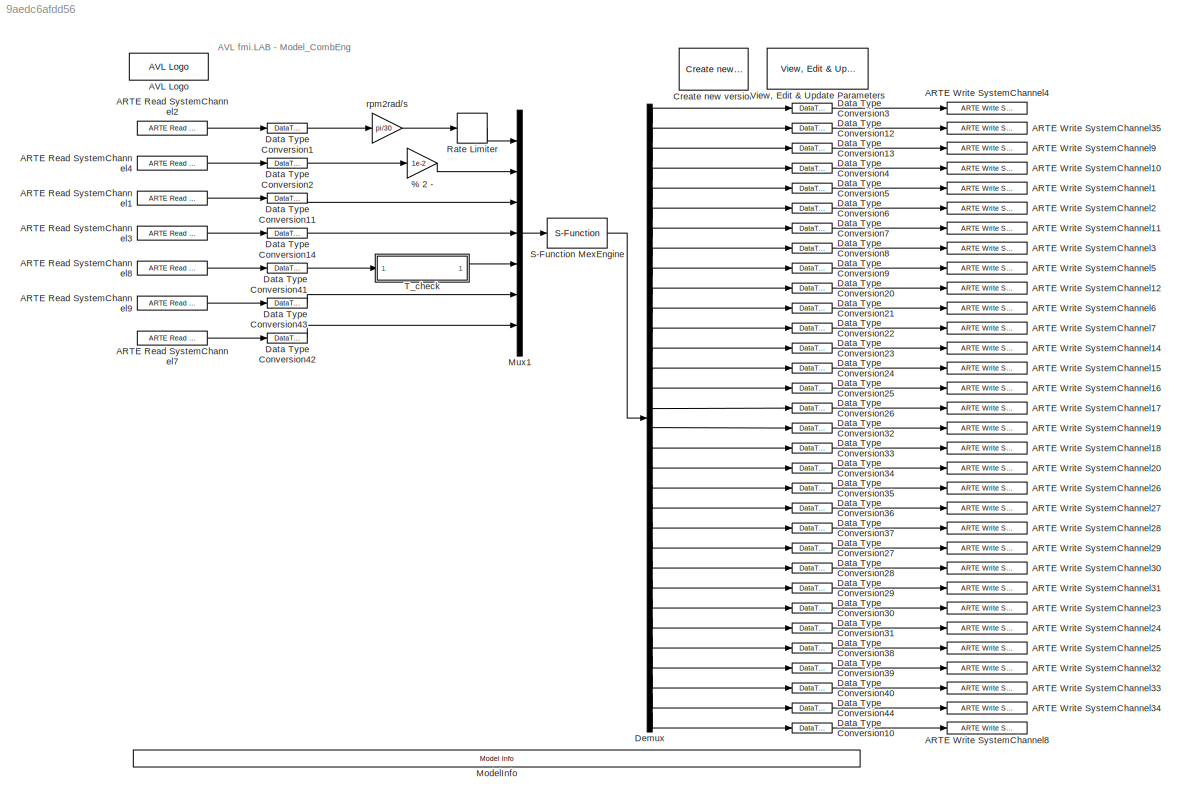
MODEL slx_9aedc6afdd56
KIND model
CONFIG AbsTol = auto
CONFIG FixedStep = Ts
CONFIG MaxStep = auto
CONFIG MinStep = auto
CONFIG RelTol = 1e-3
CONFIG SampleTimeConstraint = Unconstrained
CONFIG Solver = FixedStepDiscrete
CONFIG SolverMode = SingleTasking
CONFIG SolverName = FixedStepDiscrete
CONFIG StartTime = 0.0
CONFIG StopTime = inf
BLOCK [Gain] % 2 -
  Gain = 1e-2
  OutDataTypeStr = double
  ParamDataTypeStr = double
  SaturateOnIntegerOverflow = off
BLOCK [Reference] ARTE Read SystemChannel1  REF=ArteChannelInterface_Lib_V1_2/ARTE Read SystemChannel
  Ports = [0, 1]
  SourceBlock = ArteChannelInterface_Lib_V1_2/ARTE Read SystemChannel
  SourceType = ARTE Channel Interface - Read SystemChannel v1.2
BLOCK [Reference] ARTE Read SystemChannel2  REF=ArteChannelInterface_Lib_V1_2/ARTE Read SystemChannel
  Ports = [0, 1]
  SourceBlock = ArteChannelInterface_Lib_V1_2/ARTE Read SystemChannel
  SourceType = ARTE Channel Interface - Read SystemChannel v1.2
BLOCK [Reference] ARTE Read SystemChannel3  REF=ArteChannelInterface_Lib_V1_2/ARTE Read SystemChannel
  Ports = [0, 1]
  SourceBlock = ArteChannelInterface_Lib_V1_2/ARTE Read SystemChannel
  SourceType = ARTE Channel Interface - Read SystemChannel v1.2
BLOCK [Reference] ARTE Read SystemChannel4  REF=ArteChannelInterface_Lib_V1_2/ARTE Read SystemChannel
  Ports = [0, 1]
  SourceBlock = ArteChannelInterface_Lib_V1_2/ARTE Read SystemChannel
  SourceType = ARTE Channel Interface - Read SystemChannel v1.2
BLOCK [Reference] ARTE Read SystemChannel7  REF=ArteChannelInterface_Lib_V1_2/ARTE Read SystemChannel
  Ports = [0, 1]
  SourceBlock = ArteChannelInterface_Lib_V1_2/ARTE Read SystemChannel
  SourceType = ARTE Channel Interface - Read SystemChannel v1.2
BLOCK [Reference] ARTE Read SystemChannel8  REF=ArteChannelInterface_Lib_V1_2/ARTE Read SystemChannel
  Ports = [0, 1]
  SourceBlock = ArteChannelInterface_Lib_V1_2/ARTE Read SystemChannel
  SourceType = ARTE Channel Interface - Read SystemChannel v1.2
BLOCK [Reference] ARTE Read SystemChannel9  REF=ArteChannelInterface_Lib_V1_2/ARTE Read SystemChannel
  Ports = [0, 1]
  SourceBlock = ArteChannelInterface_Lib_V1_2/ARTE Read SystemChannel
  SourceType = ARTE Channel Interface - Read SystemChannel v1.2
BLOCK [Reference] ARTE Write SystemChannel1  REF=ArteChannelInterface_Lib_V1_2/ARTE Write SystemChannel
  Ports = [1]
  SourceBlock = ArteChannelInterface_Lib_V1_2/ARTE Write SystemChannel
  SourceType = ARTE Channel Interface - Write SystemChannel v1.2
BLOCK [Reference] ARTE Write SystemChannel10  REF=ArteChannelInterface_Lib_V1_2/ARTE Write SystemChannel
  Ports = [1]
  SourceBlock = ArteChannelInterface_Lib_V1_2/ARTE Write SystemChannel
  SourceType = ARTE Channel Interface - Write SystemChannel v1.2
BLOCK [Reference] ARTE Write SystemChannel11  REF=ArteChannelInterface_Lib_V1_2/ARTE Write SystemChannel
  Ports = [1]
  SourceBlock = ArteChannelInterface_Lib_V1_2/ARTE Write SystemChannel
  SourceType = ARTE Channel Interface - Write SystemChannel v1.2
BLOCK [Reference] ARTE Write SystemChannel12  REF=ArteChannelInterface_Lib_V1_2/ARTE Write SystemChannel
  Ports = [1]
  SourceBlock = ArteChannelInterface_Lib_V1_2/ARTE Write SystemChannel
  SourceType = ARTE Channel Interface - Write SystemChannel v1.2
BLOCK [Reference] ARTE Write SystemChannel14  REF=ArteChannelInterface_Lib_V1_2/ARTE Write SystemChannel
  Ports = [1]
  SourceBlock = ArteChannelInterface_Lib_V1_2/ARTE Write SystemChannel
  SourceType = ARTE Channel Interface - Write SystemChannel v1.2
BLOCK [Reference] ARTE Write SystemChannel15  REF=ArteChannelInterface_Lib_V1_2/ARTE Write SystemChannel
  Ports = [1]
  SourceBlock = ArteChannelInterface_Lib_V1_2/ARTE Write SystemChannel
  SourceType = ARTE Channel Interface - Write SystemChannel v1.2
BLOCK [Reference] ARTE Write SystemChannel16  REF=ArteChannelInterface_Lib_V1_2/ARTE Write SystemChannel
  Ports = [1]
  SourceBlock = ArteChannelInterface_Lib_V1_2/ARTE Write SystemChannel
  SourceType = ARTE Channel Interface - Write SystemChannel v1.2
BLOCK [Reference] ARTE Write SystemChannel17  REF=ArteChannelInterface_Lib_V1_2/ARTE Write SystemChannel
  Ports = [1]
  SourceBlock = ArteChannelInterface_Lib_V1_2/ARTE Write SystemChannel
  SourceType = ARTE Channel Interface - Write SystemChannel v1.2
BLOCK [Reference] ARTE Write SystemChannel18  REF=ArteChannelInterface_Lib_V1_2/ARTE Write SystemChannel
  Ports = [1]
  SourceBlock = ArteChannelInterface_Lib_V1_2/ARTE Write SystemChannel
  SourceType = ARTE Channel Interface - Write SystemChannel v1.2
BLOCK [Reference] ARTE Write SystemChannel19  REF=ArteChannelInterface_Lib_V1_2/ARTE Write SystemChannel
  Ports = [1]
  SourceBlock = ArteChannelInterface_Lib_V1_2/ARTE Write SystemChannel
  SourceType = ARTE Channel Interface - Write SystemChannel v1.2
BLOCK [Reference] ARTE Write SystemChannel2  REF=ArteChannelInterface_Lib_V1_2/ARTE Write SystemChannel
  Ports = [1]
  SourceBlock = ArteChannelInterface_Lib_V1_2/ARTE Write SystemChannel
  SourceType = ARTE Channel Interface - Write SystemChannel v1.2
BLOCK [Reference] ARTE Write SystemChannel20  REF=ArteChannelInterface_Lib_V1_2/ARTE Write SystemChannel
  Ports = [1]
  SourceBlock = ArteChannelInterface_Lib_V1_2/ARTE Write SystemChannel
  SourceType = ARTE Channel Interface - Write SystemChannel v1.2
BLOCK [Reference] ARTE Write SystemChannel23  REF=ArteChannelInterface_Lib_V1_2/ARTE Write SystemChannel
  Ports = [1]
  SourceBlock = ArteChannelInterface_Lib_V1_2/ARTE Write SystemChannel
  SourceType = ARTE Channel Interface - Write SystemChannel v1.2
BLOCK [Reference] ARTE Write SystemChannel24  REF=ArteChannelInterface_Lib_V1_2/ARTE Write SystemChannel
  Ports = [1]
  SourceBlock = ArteChannelInterface_Lib_V1_2/ARTE Write SystemChannel
  SourceType = ARTE Channel Interface - Write SystemChannel v1.2
BLOCK [Reference] ARTE Write SystemChannel25  REF=ArteChannelInterface_Lib_V1_2/ARTE Write SystemChannel
  Ports = [1]
  SourceBlock = ArteChannelInterface_Lib_V1_2/ARTE Write SystemChannel
  SourceType = ARTE Channel Interface - Write SystemChannel v1.2
BLOCK [Reference] ARTE Write SystemChannel26  REF=ArteChannelInterface_Lib_V1_2/ARTE Write SystemChannel
  Ports = [1]
  SourceBlock = ArteChannelInterface_Lib_V1_2/ARTE Write SystemChannel
  SourceType = ARTE Channel Interface - Write SystemChannel v1.2
BLOCK [Reference] ARTE Write SystemChannel27  REF=ArteChannelInterface_Lib_V1_2/ARTE Write SystemChannel
  Ports = [1]
  SourceBlock = ArteChannelInterface_Lib_V1_2/ARTE Write SystemChannel
  SourceType = ARTE Channel Interface - Write SystemChannel v1.2
BLOCK [Reference] ARTE Write SystemChannel28  REF=ArteChannelInterface_Lib_V1_2/ARTE Write SystemChannel
  Ports = [1]
  SourceBlock = ArteChannelInterface_Lib_V1_2/ARTE Write SystemChannel
  SourceType = ARTE Channel Interface - Write SystemChannel v1.2
BLOCK [Reference] ARTE Write SystemChannel29  REF=ArteChannelInterface_Lib_V1_2/ARTE Write SystemChannel
  Ports = [1]
  SourceBlock = ArteChannelInterface_Lib_V1_2/ARTE Write SystemChannel
  SourceType = ARTE Channel Interface - Write SystemChannel v1.2
BLOCK [Reference] ARTE Write SystemChannel3  REF=ArteChannelInterface_Lib_V1_2/ARTE Write SystemChannel
  Ports = [1]
  SourceBlock = ArteChannelInterface_Lib_V1_2/ARTE Write SystemChannel
  SourceType = ARTE Channel Interface - Write SystemChannel v1.2
BLOCK [Reference] ARTE Write SystemChannel30  REF=ArteChannelInterface_Lib_V1_2/ARTE Write SystemChannel
  Ports = [1]
  SourceBlock = ArteChannelInterface_Lib_V1_2/ARTE Write SystemChannel
  SourceType = ARTE Channel Interface - Write SystemChannel v1.2
BLOCK [Reference] ARTE Write SystemChannel31  REF=ArteChannelInterface_Lib_V1_2/ARTE Write SystemChannel
  Ports = [1]
  SourceBlock = ArteChannelInterface_Lib_V1_2/ARTE Write SystemChannel
  SourceType = ARTE Channel Interface - Write SystemChannel v1.2
BLOCK [Reference] ARTE Write SystemChannel32  REF=ArteChannelInterface_Lib_V1_2/ARTE Write SystemChannel
  Ports = [1]
  SourceBlock = ArteChannelInterface_Lib_V1_2/ARTE Write SystemChannel
  SourceType = ARTE Channel Interface - Write SystemChannel v1.2
BLOCK [Reference] ARTE Write SystemChannel33  REF=ArteChannelInterface_Lib_V1_2/ARTE Write SystemChannel
  Ports = [1]
  SourceBlock = ArteChannelInterface_Lib_V1_2/ARTE Write SystemChannel
  SourceType = ARTE Channel Interface - Write SystemChannel v1.2
BLOCK [Reference] ARTE Write SystemChannel34  REF=ArteChannelInterface_Lib_V1_2/ARTE Write SystemChannel
  Ports = [1]
  SourceBlock = ArteChannelInterface_Lib_V1_2/ARTE Write SystemChannel
  SourceType = ARTE Channel Interface - Write SystemChannel v1.2
BLOCK [Reference] ARTE Write SystemChannel35  REF=ArteChannelInterface_Lib_V1_2/ARTE Write SystemChannel
  Ports = [1]
  SourceBlock = ArteChannelInterface_Lib_V1_2/ARTE Write SystemChannel
  SourceType = ARTE Channel Interface - Write SystemChannel v1.2
BLOCK [Reference] ARTE Write SystemChannel4  REF=ArteChannelInterface_Lib_V1_2/ARTE Write SystemChannel
  Ports = [1]
  SourceBlock = ArteChannelInterface_Lib_V1_2/ARTE Write SystemChannel
  SourceType = ARTE Channel Interface - Write SystemChannel v1.2
BLOCK [Reference] ARTE Write SystemChannel5  REF=ArteChannelInterface_Lib_V1_2/ARTE Write SystemChannel
  Ports = [1]
  SourceBlock = ArteChannelInterface_Lib_V1_2/ARTE Write SystemChannel
  SourceType = ARTE Channel Interface - Write SystemChannel v1.2
BLOCK [Reference] ARTE Write SystemChannel6  REF=ArteChannelInterface_Lib_V1_2/ARTE Write SystemChannel
  Ports = [1]
  SourceBlock = ArteChannelInterface_Lib_V1_2/ARTE Write SystemChannel
  SourceType = ARTE Channel Interface - Write SystemChannel v1.2
BLOCK [Reference] ARTE Write SystemChannel7  REF=ArteChannelInterface_Lib_V1_2/ARTE Write SystemChannel
  Ports = [1]
  SourceBlock = ArteChannelInterface_Lib_V1_2/ARTE Write SystemChannel
  SourceType = ARTE Channel Interface - Write SystemChannel v1.2
BLOCK [Reference] ARTE Write SystemChannel8  REF=ArteChannelInterface_Lib_V1_2/ARTE Write SystemChannel
  Ports = [1]
  SourceBlock = ArteChannelInterface_Lib_V1_2/ARTE Write SystemChannel
  SourceType = ARTE Channel Interface - Write SystemChannel v1.2
BLOCK [Reference] ARTE Write SystemChannel9  REF=ArteChannelInterface_Lib_V1_2/ARTE Write SystemChannel
  Ports = [1]
  SourceBlock = ArteChannelInterface_Lib_V1_2/ARTE Write SystemChannel
  SourceType = ARTE Channel Interface - Write SystemChannel v1.2
BLOCK [Reference] AVL Logo  REF=CommonLib/CommonLib/AVL Logo
  Ports = []
  SourceBlock = CommonLib/CommonLib/AVL Logo
BLOCK [Reference] Create new version  REF=AVLArteLabLibrary/Create new version
  Ports = []
  SourceBlock = AVLArteLabLibrary/Create new version
  SourceType = Create new version
BLOCK [DataTypeConversion] Data Type Conversion1
  OutDataTypeStr = double
  RndMeth = Floor
  SaturateOnIntegerOverflow = off
BLOCK [DataTypeConversion] Data Type Conversion10
  OutDataTypeStr = single
  RndMeth = Floor
  SaturateOnIntegerOverflow = off
BLOCK [DataTypeConversion] Data Type Conversion11
  OutDataTypeStr = double
  RndMeth = Floor
  SaturateOnIntegerOverflow = off
BLOCK [DataTypeConversion] Data Type Conversion12
  OutDataTypeStr = single
  RndMeth = Floor
  SaturateOnIntegerOverflow = off
BLOCK [DataTypeConversion] Data Type Conversion13
  OutDataTypeStr = single
  RndMeth = Floor
  SaturateOnIntegerOverflow = off
BLOCK [DataTypeConversion] Data Type Conversion14
  OutDataTypeStr = double
  RndMeth = Floor
  SaturateOnIntegerOverflow = off
BLOCK [DataTypeConversion] Data Type Conversion2
  OutDataTypeStr = double
  RndMeth = Floor
  SaturateOnIntegerOverflow = off
BLOCK [DataTypeConversion] Data Type Conversion20
  OutDataTypeStr = single
  RndMeth = Floor
  SaturateOnIntegerOverflow = off
BLOCK [DataTypeConversion] Data Type Conversion21
  OutDataTypeStr = single
  RndMeth = Floor
  SaturateOnIntegerOverflow = off
BLOCK [DataTypeConversion] Data Type Conversion22
  OutDataTypeStr = single
  RndMeth = Floor
  SaturateOnIntegerOverflow = off
BLOCK [DataTypeConversion] Data Type Conversion23
  OutDataTypeStr = single
  RndMeth = Floor
  SaturateOnIntegerOverflow = off
BLOCK [DataTypeConversion] Data Type Conversion24
  OutDataTypeStr = single
  RndMeth = Floor
  SaturateOnIntegerOverflow = off
BLOCK [DataTypeConversion] Data Type Conversion25
  OutDataTypeStr = single
  RndMeth = Floor
  SaturateOnIntegerOverflow = off
BLOCK [DataTypeConversion] Data Type Conversion26
  OutDataTypeStr = single
  RndMeth = Floor
  SaturateOnIntegerOverflow = off
BLOCK [DataTypeConversion] Data Type Conversion27
  OutDataTypeStr = single
  RndMeth = Floor
  SaturateOnIntegerOverflow = off
BLOCK [DataTypeConversion] Data Type Conversion28
  OutDataTypeStr = single
  RndMeth = Floor
  SaturateOnIntegerOverflow = off
BLOCK [DataTypeConversion] Data Type Conversion29
  OutDataTypeStr = single
  RndMeth = Floor
  SaturateOnIntegerOverflow = off
BLOCK [DataTypeConversion] Data Type Conversion3
  OutDataTypeStr = single
  RndMeth = Floor
  SaturateOnIntegerOverflow = off
BLOCK [DataTypeConversion] Data Type Conversion30
  OutDataTypeStr = single
  RndMeth = Floor
  SaturateOnIntegerOverflow = off
BLOCK [DataTypeConversion] Data Type Conversion31
  OutDataTypeStr = single
  RndMeth = Floor
  SaturateOnIntegerOverflow = off
BLOCK [DataTypeConversion] Data Type Conversion32
  OutDataTypeStr = single
  RndMeth = Floor
  SaturateOnIntegerOverflow = off
BLOCK [DataTypeConversion] Data Type Conversion33
  OutDataTypeStr = single
  RndMeth = Floor
  SaturateOnIntegerOverflow = off
BLOCK [DataTypeConversion] Data Type Conversion34
  OutDataTypeStr = single
  RndMeth = Floor
  SaturateOnIntegerOverflow = off
BLOCK [DataTypeConversion] Data Type Conversion35
  OutDataTypeStr = single
  RndMeth = Floor
  SaturateOnIntegerOverflow = off
BLOCK [DataTypeConversion] Data Type Conversion36
  OutDataTypeStr = single
  RndMeth = Floor
  SaturateOnIntegerOverflow = off
BLOCK [DataTypeConversion] Data Type Conversion37
  OutDataTypeStr = single
  RndMeth = Floor
  SaturateOnIntegerOverflow = off
BLOCK [DataTypeConversion] Data Type Conversion38
  OutDataTypeStr = single
  RndMeth = Floor
  SaturateOnIntegerOverflow = off
BLOCK [DataTypeConversion] Data Type Conversion39
  OutDataTypeStr = single
  RndMeth = Floor
  SaturateOnIntegerOverflow = off
BLOCK [DataTypeConversion] Data Type Conversion4
  OutDataTypeStr = single
  RndMeth = Floor
  SaturateOnIntegerOverflow = off
BLOCK [DataTypeConversion] Data Type Conversion40
  OutDataTypeStr = single
  RndMeth = Floor
  SaturateOnIntegerOverflow = off
BLOCK [DataTypeConversion] Data Type Conversion41
  OutDataTypeStr = double
  RndMeth = Floor
  SaturateOnIntegerOverflow = off
BLOCK [DataTypeConversion] Data Type Conversion42
  OutDataTypeStr = double
  RndMeth = Floor
  SaturateOnIntegerOverflow = off
BLOCK [DataTypeConversion] Data Type Conversion43
  OutDataTypeStr = double
  RndMeth = Floor
  SaturateOnIntegerOverflow = off
BLOCK [DataTypeConversion] Data Type Conversion44
  OutDataTypeStr = single
  RndMeth = Floor
  SaturateOnIntegerOverflow = off
BLOCK [DataTypeConversion] Data Type Conversion5
  OutDataTypeStr = single
  RndMeth = Floor
  SaturateOnIntegerOverflow = off
BLOCK [DataTypeConversion] Data Type Conversion6
  OutDataTypeStr = single
  RndMeth = Floor
  SaturateOnIntegerOverflow = off
BLOCK [DataTypeConversion] Data Type Conversion7
  OutDataTypeStr = single
  RndMeth = Floor
  SaturateOnIntegerOverflow = off
BLOCK [DataTypeConversion] Data Type Conversion8
  OutDataTypeStr = single
  RndMeth = Floor
  SaturateOnIntegerOverflow = off
BLOCK [DataTypeConversion] Data Type Conversion9
  OutDataTypeStr = single
  RndMeth = Floor
  SaturateOnIntegerOverflow = off
BLOCK [Demux] Demux
  DisplayOption = bar
  Outputs = 32
  Ports = [1, 32]
BLOCK [Reference] ModelInfo  REF=simulink/Model-Wide
Utilities/Model Info
  Ports = []
  SourceBlock = simulink/Model-Wide\nUtilities/Model Info
  SourceType = CMBlock
BLOCK [Mux] Mux1
  DisplayOption = bar
  Inputs = 7
  Ports = [7, 1]
BLOCK [RateLimiter] Rate Limiter
  FallingSlewLimit = -1000
  RisingSlewLimit = 1000
  SampleTimeMode = inherited
BLOCK [S-Function] S-Function MexEngine
  EnableBusSupport = off
  FunctionName = mexengine
  Ports = [1, 1]
  SFunctionDeploymentMode = off
  SFunctionModules = 'combustionengine cylinder definitions ecu environment gascomponent shomate valve'
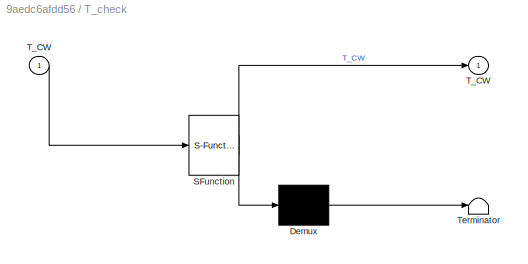
BLOCK [SubSystem] T_check
  ErrorFcn = Stateflow.Translate.translate
  PermitHierarchicalResolution = ExplicitOnly
  Ports = [1, 1]
  RequestExecContextInheritance = off
  SFBlockType = MATLAB Function
  TreatAsAtomicUnit = on
  Variant = off
BLOCK [Demux] T_check/ Demux 
  Outputs = 1
  Ports = [1, 1]
BLOCK [S-Function] T_check/ SFunction 
  EnableBusSupport = on
  FunctionName = sf_sfun
  PortCounts = [1 2]
  Ports = [1, 2]
  SFunctionDeploymentMode = off
  Tag = Stateflow S-Function CombEng 1
BLOCK [Terminator] T_check/ Terminator 
BLOCK [Outport] T_check/T_CW
  IconDisplay = Port number
BLOCK [Inport] T_check/T_CW 
  IconDisplay = Port number
BLOCK [Reference] View, Edit & Update Parameters  REF=AVLArteLabLibrary/View, Edit & Update Parameters
  Ports = []
  SourceBlock = AVLArteLabLibrary/View, Edit & Update Parameters
  SourceType = View, Edit & Update Parameters
BLOCK [Gain] rpm2rad//s 
  Gain = pi/30
  OutDataTypeStr = double
  ParamDataTypeStr = double
  SaturateOnIntegerOverflow = off
ANNOTATION (root): AVL fmi.LAB - Model_CombEng
LINE % 2 -:1 -> Mux1:2
LINE ARTE Read SystemChannel1:1 -> Data Type Conversion11:1
LINE ARTE Read SystemChannel2:1 -> Data Type Conversion1:1
LINE ARTE Read SystemChannel3:1 -> Data Type Conversion14:1
LINE ARTE Read SystemChannel4:1 -> Data Type Conversion2:1
LINE ARTE Read SystemChannel7:1 -> Data Type Conversion42:1
LINE ARTE Read SystemChannel8:1 -> Data Type Conversion41:1
LINE ARTE Read SystemChannel9:1 -> Data Type Conversion43:1
LINE Data Type Conversion10:1 -> ARTE Write SystemChannel8:1
LINE Data Type Conversion11:1 -> Mux1:3
LINE Data Type Conversion12:1 -> ARTE Write SystemChannel35:1
LINE Data Type Conversion13:1 -> ARTE Write SystemChannel9:1
LINE Data Type Conversion14:1 -> Mux1:4
LINE Data Type Conversion1:1 -> rpm2rad//s :1
LINE Data Type Conversion20:1 -> ARTE Write SystemChannel12:1
LINE Data Type Conversion21:1 -> ARTE Write SystemChannel6:1
LINE Data Type Conversion22:1 -> ARTE Write SystemChannel7:1
LINE Data Type Conversion23:1 -> ARTE Write SystemChannel14:1
LINE Data Type Conversion24:1 -> ARTE Write SystemChannel15:1
LINE Data Type Conversion25:1 -> ARTE Write SystemChannel16:1
LINE Data Type Conversion26:1 -> ARTE Write SystemChannel17:1
LINE Data Type Conversion27:1 -> ARTE Write SystemChannel29:1
LINE Data Type Conversion28:1 -> ARTE Write SystemChannel30:1
LINE Data Type Conversion29:1 -> ARTE Write SystemChannel31:1
LINE Data Type Conversion2:1 -> % 2 -:1
LINE Data Type Conversion30:1 -> ARTE Write SystemChannel23:1
LINE Data Type Conversion31:1 -> ARTE Write SystemChannel24:1
LINE Data Type Conversion32:1 -> ARTE Write SystemChannel19:1
LINE Data Type Conversion33:1 -> ARTE Write SystemChannel18:1
LINE Data Type Conversion34:1 -> ARTE Write SystemChannel20:1
LINE Data Type Conversion35:1 -> ARTE Write SystemChannel26:1
LINE Data Type Conversion36:1 -> ARTE Write SystemChannel27:1
LINE Data Type Conversion37:1 -> ARTE Write SystemChannel28:1
LINE Data Type Conversion38:1 -> ARTE Write SystemChannel25:1
LINE Data Type Conversion39:1 -> ARTE Write SystemChannel32:1
LINE Data Type Conversion3:1 -> ARTE Write SystemChannel4:1
LINE Data Type Conversion40:1 -> ARTE Write SystemChannel33:1
LINE Data Type Conversion41:1 -> T_check:1
LINE Data Type Conversion42:1 -> Mux1:7
LINE Data Type Conversion43:1 -> Mux1:6
LINE Data Type Conversion44:1 -> ARTE Write SystemChannel34:1
LINE Data Type Conversion4:1 -> ARTE Write SystemChannel10:1
LINE Data Type Conversion5:1 -> ARTE Write SystemChannel1:1
LINE Data Type Conversion6:1 -> ARTE Write SystemChannel2:1
LINE Data Type Conversion7:1 -> ARTE Write SystemChannel11:1
LINE Data Type Conversion8:1 -> ARTE Write SystemChannel3:1
LINE Data Type Conversion9:1 -> ARTE Write SystemChannel5:1
LINE Demux:1 -> Data Type Conversion3:1
LINE Demux:10 -> Data Type Conversion20:1
LINE Demux:11 -> Data Type Conversion21:1
LINE Demux:12 -> Data Type Conversion22:1
LINE Demux:13 -> Data Type Conversion23:1
LINE Demux:14 -> Data Type Conversion24:1
LINE Demux:15 -> Data Type Conversion25:1
LINE Demux:16 -> Data Type Conversion26:1
LINE Demux:17 -> Data Type Conversion32:1
LINE Demux:18 -> Data Type Conversion33:1
LINE Demux:19 -> Data Type Conversion34:1
LINE Demux:2 -> Data Type Conversion12:1
LINE Demux:20 -> Data Type Conversion35:1
LINE Demux:21 -> Data Type Conversion36:1
LINE Demux:22 -> Data Type Conversion37:1
LINE Demux:23 -> Data Type Conversion27:1
LINE Demux:24 -> Data Type Conversion28:1
LINE Demux:25 -> Data Type Conversion29:1
LINE Demux:26 -> Data Type Conversion30:1
LINE Demux:27 -> Data Type Conversion31:1
LINE Demux:28 -> Data Type Conversion38:1
LINE Demux:29 -> Data Type Conversion39:1
LINE Demux:3 -> Data Type Conversion13:1
LINE Demux:30 -> Data Type Conversion40:1
LINE Demux:31 -> Data Type Conversion44:1
LINE Demux:32 -> Data Type Conversion10:1
LINE Demux:4 -> Data Type Conversion4:1
LINE Demux:5 -> Data Type Conversion5:1
LINE Demux:6 -> Data Type Conversion6:1
LINE Demux:7 -> Data Type Conversion7:1
LINE Demux:8 -> Data Type Conversion8:1
LINE Demux:9 -> Data Type Conversion9:1
LINE Mux1:1 -> S-Function MexEngine:1
LINE Rate Limiter:1 -> Mux1:1
LINE S-Function MexEngine:1 -> Demux:1
LINE T_check:1 -> Mux1:5
LINE rpm2rad//s :1 -> Rate Limiter:1
CHART T_check states=1 transitions=1
  STATE_LABEL 'eML_blk_kernel()'
  STATE_LABEL 'SCRIPT:\nfunction T_CW  = calc(T_CW)\nif(T_CW < 250.0)\n    T_CW = 330;\nend\nif(T_CW > 500.0)\n    T_CW = 500;\nend\n\n\n\n'
